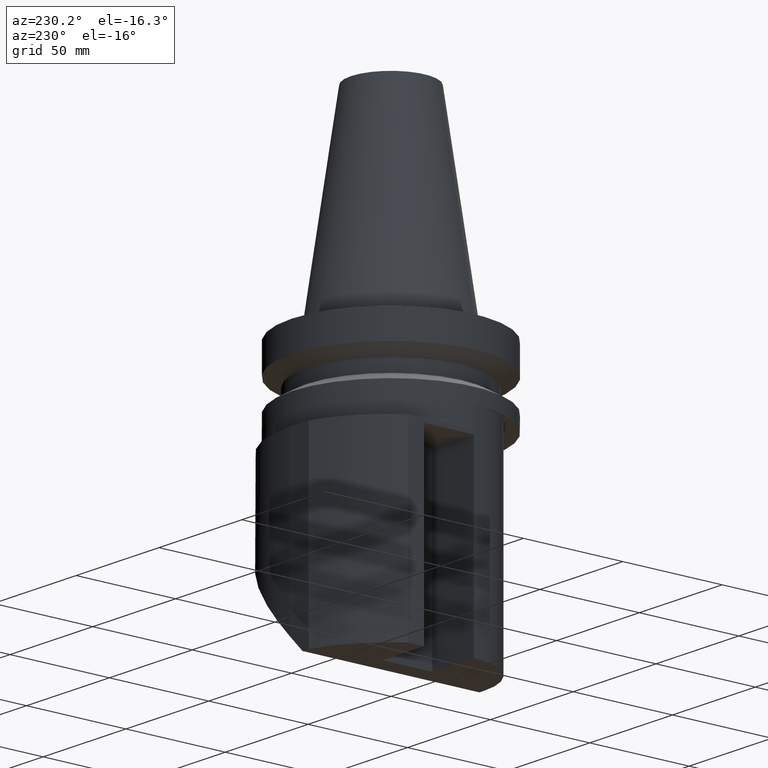
[diagram: clean part render]
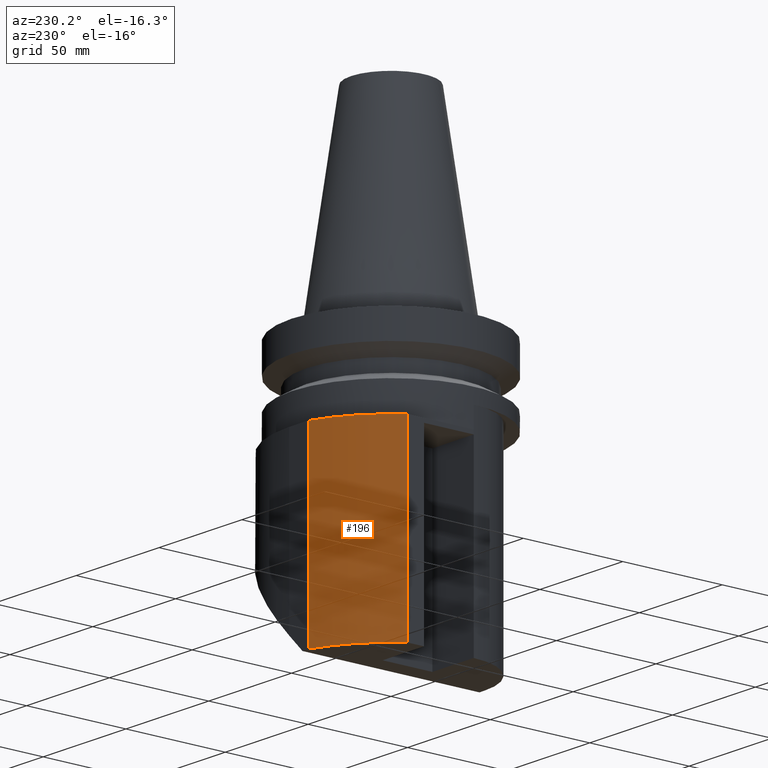
[diagram: same view with one face highlighted and labeled with its STEP entity id]
A machine part, auxiliary view. The second image highlights one B-rep face of the part: STEP entity #196.
In plain terms, the highlighted cylindrical surface (partial cylindrical patch) has radius 60 mm, axis along (-0, -0, -1).
Its self-contained STEP definition (entity closure, byte-faithful):
#158=EDGE_CURVE('Unnamed[1]',#383,#384,#385,.T.);
#188=EDGE_CURVE('Unnamed[1]',#427,#383,#428,.T.);
#196=ADVANCED_FACE('Unnamed[1]',(#438),#439,.T.);
#232=EDGE_CURVE('Unnamed[1]',#483,#384,#484,.T.);
#258=EDGE_CURVE('Unnamed[1]',#483,#427,#516,.F.);
#383=VERTEX_POINT('',#669);
#384=VERTEX_POINT('',#670);
#385=LINE('',#671,#672);
#427=VERTEX_POINT('',#731);
#428=CIRCLE('',#732,60.0);
#438=FACE_OUTER_BOUND('',#746,.T.);
#439=CYLINDRICAL_SURFACE('',#747,60.0);
#483=VERTEX_POINT('',#816);
#484=CIRCLE('',#817,60.0000000000001);
#516=LINE('',#861,#862);
#669=CARTESIAN_POINT('',(-49.999999903885,33.1662480484526,-140.000000000001));
#670=CARTESIAN_POINT('',(-49.999999903885,33.1662480484529,-47.9999999999995));
#671=CARTESIAN_POINT('',(-49.999999903885,33.1662480484526,-94.0000000000001));
#672=VECTOR('',#978,1.0);
#731=CARTESIAN_POINT('',(-18.7349939952017,56.9999999999977,-140.000000000001));
#732=AXIS2_PLACEMENT_3D('',#1026,#1027,#1028);
#746=EDGE_LOOP('',(#1039,#1040,#1041,#1042));
#747=AXIS2_PLACEMENT_3D('',#1043,#1044,#1045);
#816=CARTESIAN_POINT('',(-18.7349939952023,56.9999999999977,-47.9999999999995));
#817=AXIS2_PLACEMENT_3D('',#1091,#1092,#1093);
#861=CARTESIAN_POINT('',(-18.7349939952018,56.9999999999977,-94.0000000000002));
#862=VECTOR('',#1157,1.0);
#978=DIRECTION('',(6.12323399573678E-017,1.04638831828052E-015,1.0));
#1026=CARTESIAN_POINT('',(-8.57252759403154E-015,-1.56208586292065E-013,-140.000000000001));
#1027=DIRECTION('',(6.12323399573678E-017,1.04638831828052E-015,1.0));
#1028=DIRECTION('',(-1.22464679914735E-016,-1.0,1.04638831828052E-015));
#1039=ORIENTED_EDGE('',*,*,#258,.T.);
#1040=ORIENTED_EDGE('',*,*,#188,.T.);
#1041=ORIENTED_EDGE('',*,*,#158,.T.);
#1042=ORIENTED_EDGE('',*,*,#232,.F.);
#1043=CARTESIAN_POINT('',(-5.75583995599258E-015,-1.0807472365116E-013,-94.0000000000001));
#1044=DIRECTION('',(-6.12323399573678E-017,-1.04638831828052E-015,-1.0));
#1045=DIRECTION('',(-1.22464679914735E-016,-1.0,1.04638831828052E-015));
#1091=CARTESIAN_POINT('',(-2.93915231795363E-015,-5.99408610102554E-014,-47.9999999999995));
#1092=DIRECTION('',(6.12323399573678E-017,1.04638831828052E-015,1.0));
#1093=DIRECTION('',(-1.22464679914735E-016,-1.0,1.04638831828052E-015));
#1157=DIRECTION('',(6.12323399573678E-017,1.04638831828052E-015,1.0));